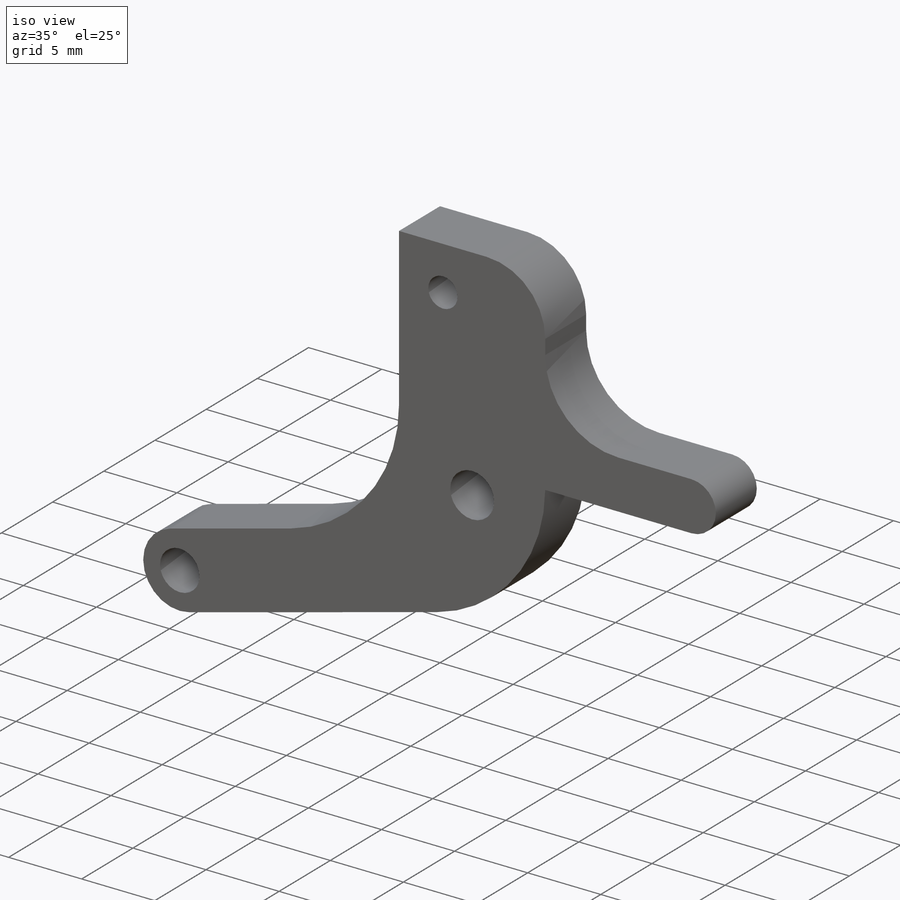
[diagram: iso view]
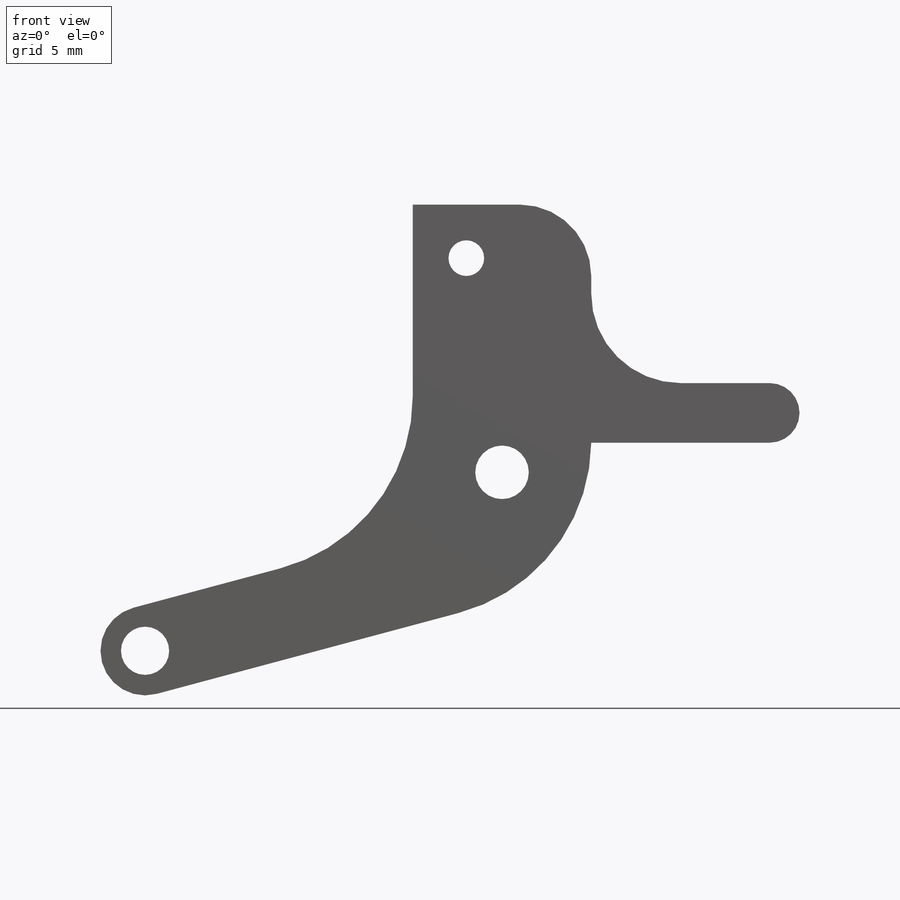
[diagram: front view]
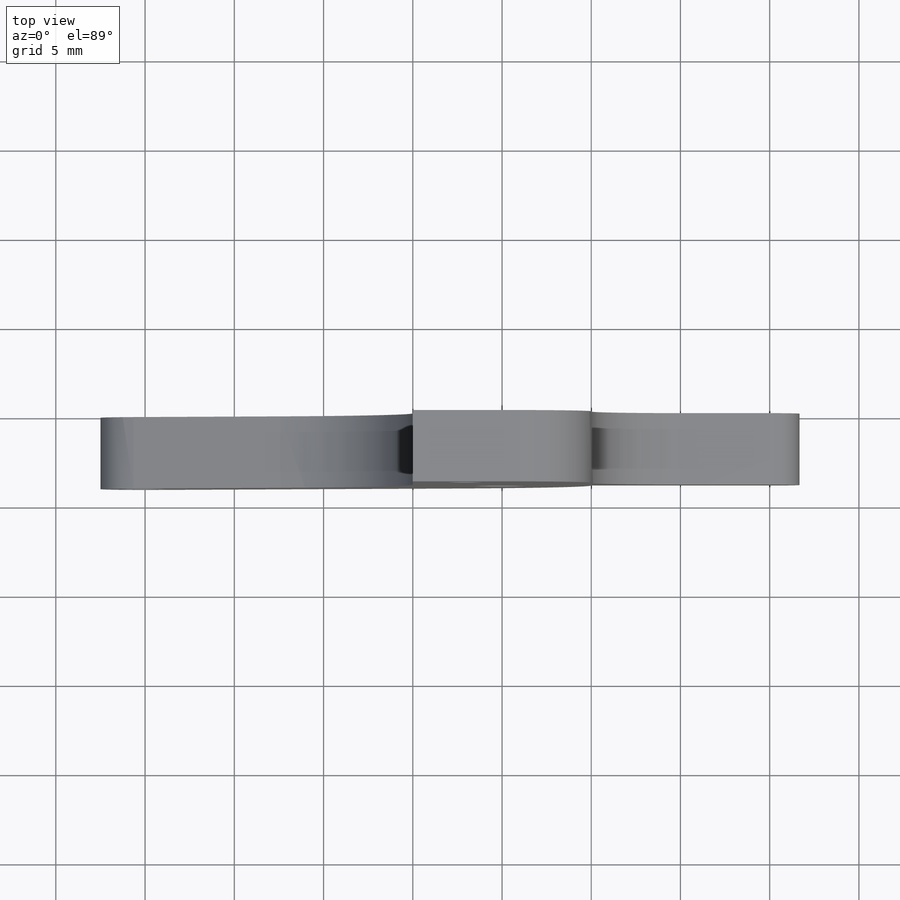
[diagram: top view]
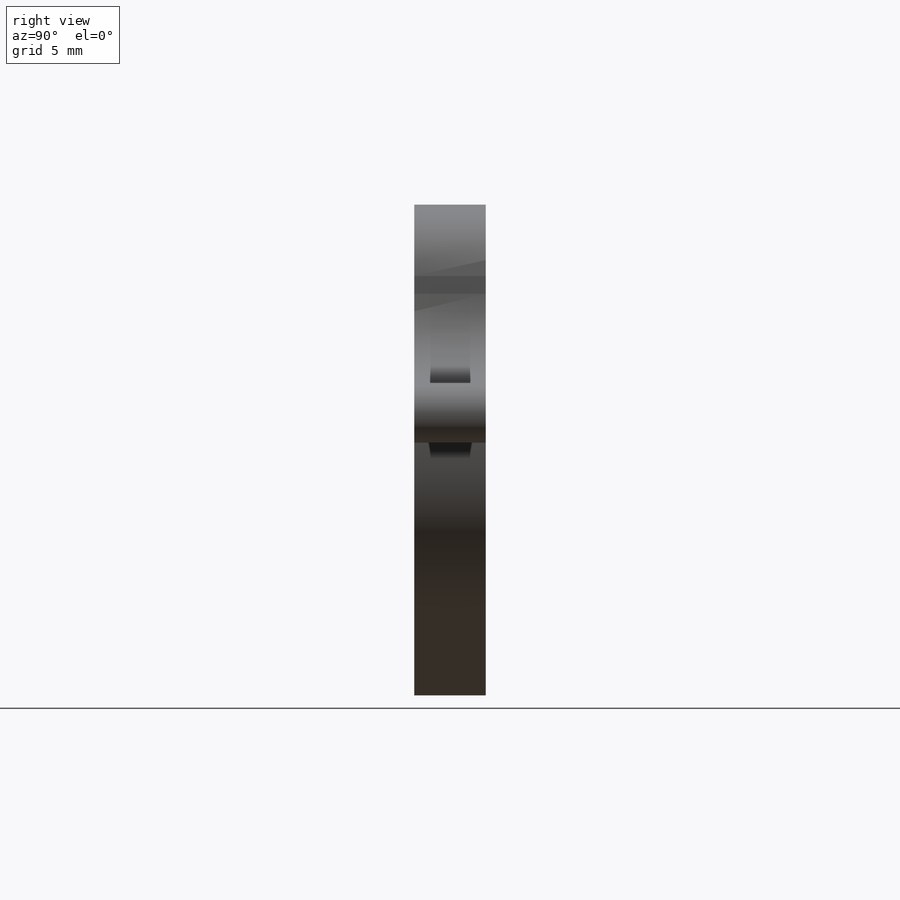
[diagram: right view]
SOLIDWORKS PART (.sldprt)
format: sldprt  version: not decoded by parser v0  size: 172,544 bytes
history: native  units: mm
features: fillet x4, material x1, sketch x1, extrude x1 (+16 scaffold rows collapsed)
feature tree (23):
  scaffold x16  (default folders/planes/origin — collapsed)
  material  "Material <not specified>"
  sketch  "Sketch1"  dims[c1.D5=2.5mm c1.D9=2.0mm c1.D10=3.0mm c1.D15=2.7mm c1.D1=40.0mm c1.D2=45.0mm c1.D3=~16.22716mm c2.D3=105.0deg c2.D4=5.0mm c2.D6=10.0mm c2.D7=20.0mm c2.D8=5.0mm c2.D11=2.0mm c2.D12=12.0mm c3.D7=15.0mm c3.D13=20.0mm c3.D14=10.0mm c3.D16=15.0mm]
  extrude  "Boss-Extrude1"  Depth=4mm
  fillet  "Fillet1"  Radius=10mm
  fillet  "Fillet2"  Radius=10mm
  fillet  "Fillet3"  Radius=5mm
  fillet  "Fillet4"  Radius=4mm
decode coverage: 6 of 6 modeling features carry decoded parameters
note: ~ marks probable driven/reference dimensions
note: suppression state not decoded; provenance and decode notes live in map.json
